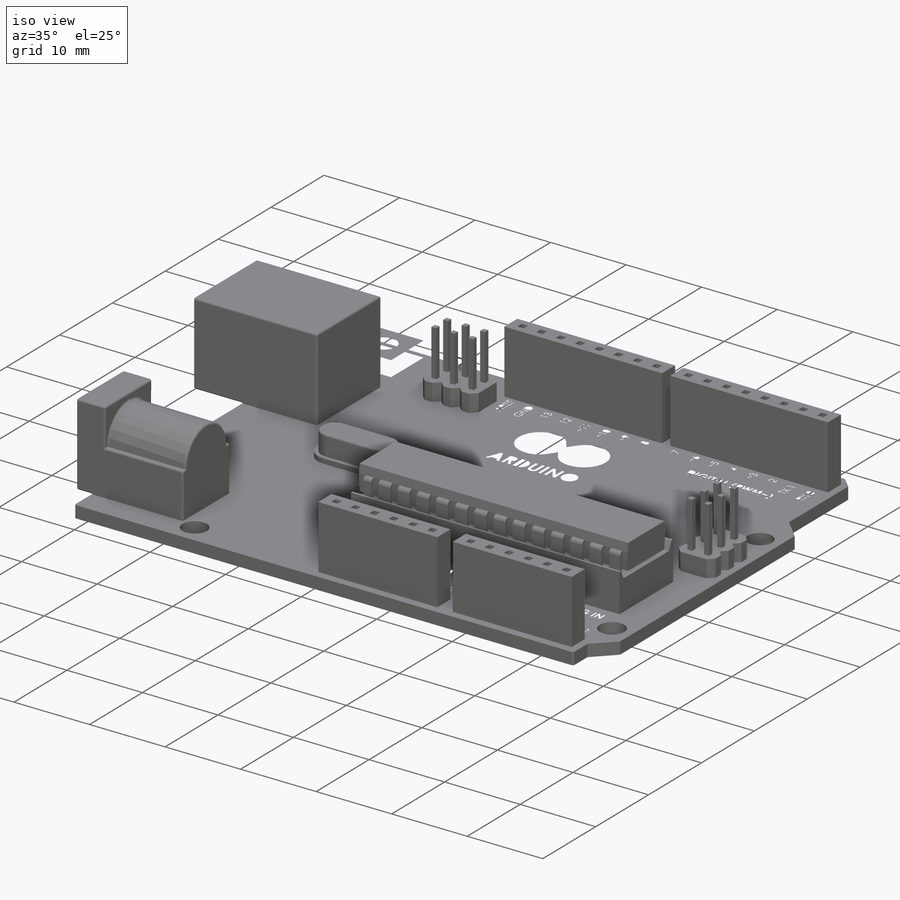
[diagram: iso view]
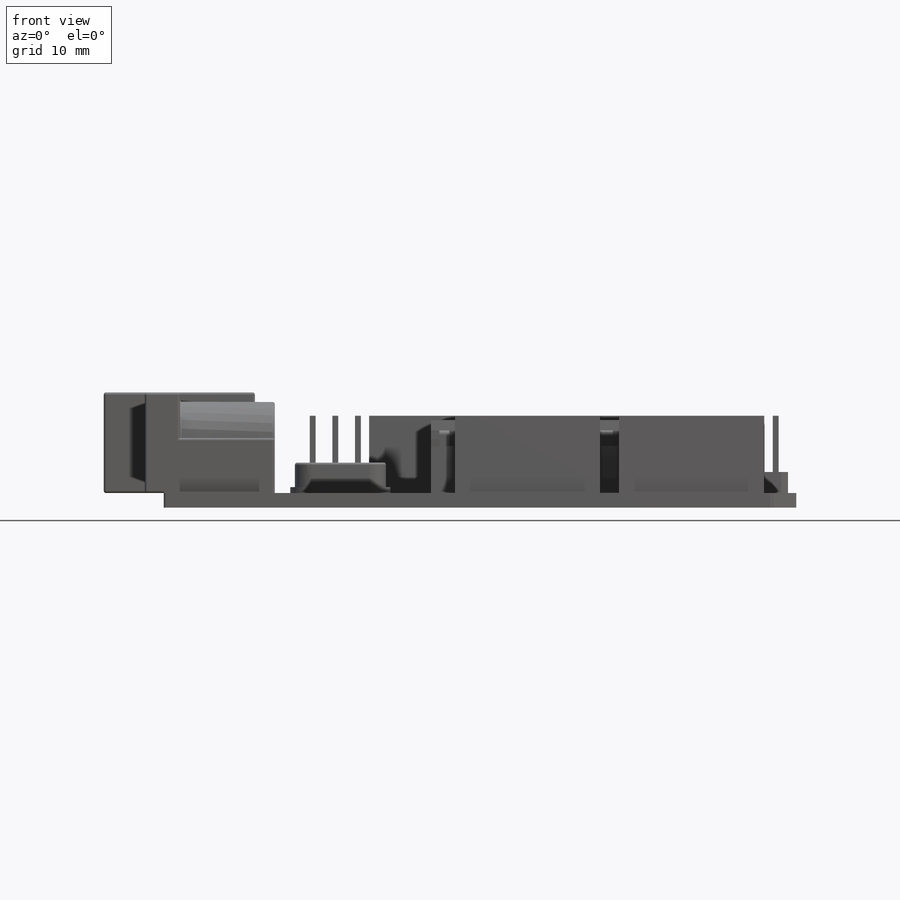
[diagram: front view]
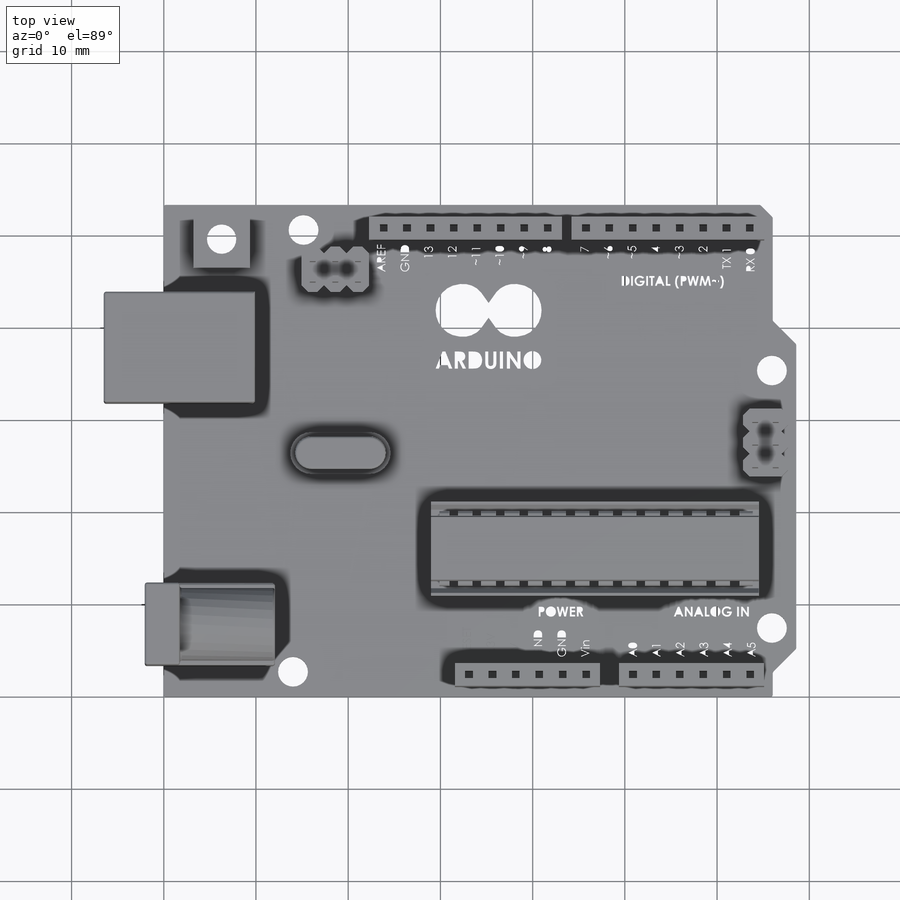
[diagram: top view]
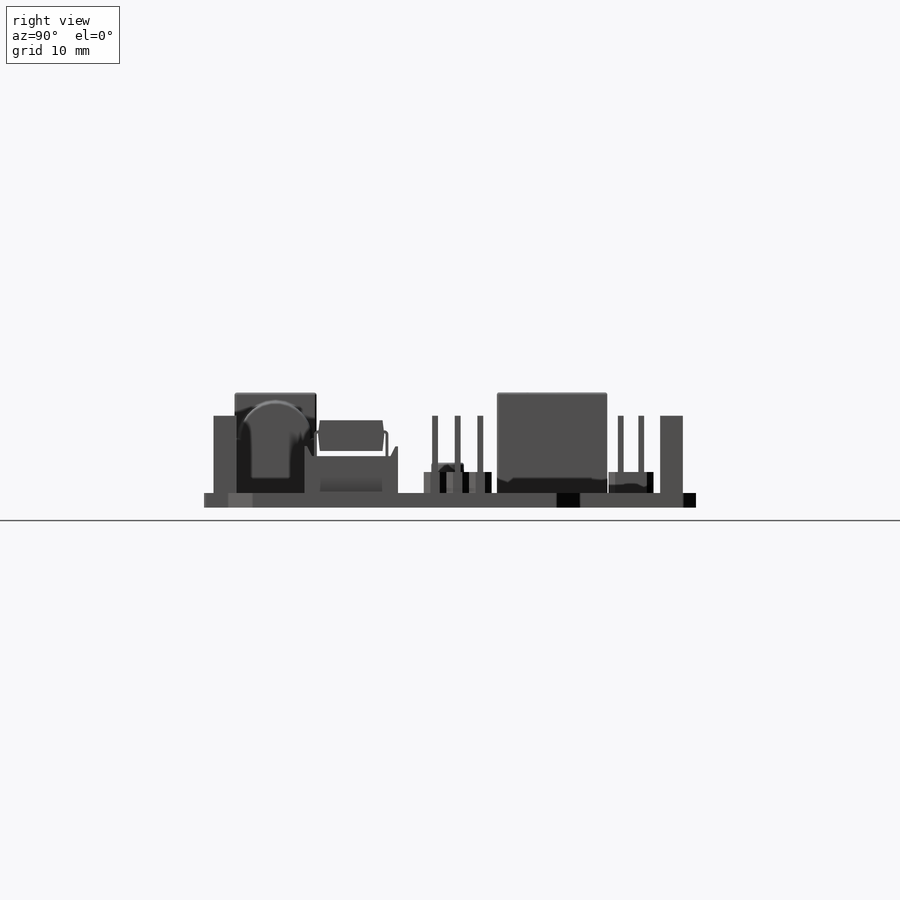
[diagram: right view]
SOLIDWORKS PART (.sldprt)
format: sldprt  version: not decoded by parser v0  size: 3,817,984 bytes
history: native  units: mm
features: sketch x19, cut_extrude x10, extrude x9, fillet x3, material x1, dome x1 (+19 scaffold rows collapsed; 6 parser-record rows omitted)
feature tree (68):
  scaffold x19  (default folders/planes/origin — collapsed)
  material  "Material <not specified>"
  sketch  "Sketch1"  dims[c1.D8=3.2385mm c1.D16=0.254mm c1.D1=66.04mm c1.D2=2.667mm c1.D3=5.207mm c1.D4=~6.561021mm c2.D4=45.0deg c2.D5=38.227mm c2.D6=53.34mm c2.D7=1.9431mm c2.D9=1.016mm c2.D10=5.842mm c2.D11=16.3322mm c2.D12=13.5382mm c2.D13=1.0922mm c2.D14=12.3952mm c2.D15=1.0922mm]
  extrude  "PCB"  Depth=1.5875mm
  parser-record x6  (decoder bookkeeping rows leaked as tree rows — omitted from the tree; the rows remain in map.json)
  sketch  "Sketch2"  dims[D1=16.383mm D2=6.5024mm D3=11.9761mm D4=21.59mm]
  extrude  "USB box"  Depth=10.922mm
  sketch  "Sketch3"  dims[c1.D1=1.4097mm c1.D2=1.651mm c1.D3=1.651mm c1.D4=1.4097mm c1.D5=~2.214315mm c2.D5=45.0deg c2.D6=2.54mm c2.D7=5.588mm c2.D8=3.175mm c2.D9=2.286mm]
  cut_extrude  "USB hole"  Depth=9.017mm
  fillet  "Fillet1"  Radius=0.254mm
  sketch  "Sketch4"  dims[D1=14.097mm D2=2.0574mm D3=8.89mm D4=12.192mm]
  extrude  "Extrude4"  Depth=10.8966mm
  sketch  "Sketch5"  dims[D1=7.874mm D2=0.9906mm]
  cut_extrude  "Extrude5"  Depth=10.3124mm
  sketch  "Sketch6"  dims[D1=6.35mm D2=1.397mm]
  cut_extrude  "Extrude6"  Depth=9.4615mm
  sketch  "Sketch7"  dims[D1=2.0828mm]
  extrude  "Extrude7"  Depth=5.6515mm
  dome  "Dome1"
  fillet  "Fillet2"  Radius=0.254mm
  sketch  "Sketch8"  dims[c1.D1=15.748mm c1.D2=15.748mm c1.D3=33.528mm c1.D4=34.4678mm c1.D5=2.4638mm c1.D6=3.4925mm c1.D7=20.8788mm c2.D2=42.8371mm c2.D8=43.7642mm c2.D9=3.8862mm c2.D10=0.8255mm c2.D11=1.1303mm c2.D12=0.8255mm c2.D13=2.54mm c2.D14=2.4511mm c2.D15=4.8895mm c2.D16=~2.763746mm c3.D16=135.0deg c3.D17=~2.252448mm c4.D17=135.0deg c4.D18=~1.015279mm c5.D18=135.0deg c5.D19=~0.717911mm c6.D19=45.0deg c7.D19=9.4869mm c7.D14=4.8895mm c7.D16=135.0deg c7.D18=5.7785mm c7.D20=~1.015279mm c7.D21=~1.015279mm c8.D21=135.0deg c8.D22=~0.717911mm c9.D22=135.0deg c9.D23=~1.015279mm c10.D23=135.0deg c10.D24=31.1785mm c10.D25=35.56mm c10.D26=39.624mm c10.D27=10.16mm c10.D28=21.0312mm]
  extrude  "Extrude8"  Depth=8.382mm
  sketch  "Sketch9"  dims[D1=0.635mm D2=1.5875mm D4=1.5875mm D3=0.0mm D5=0.0mm]
  cut_extrude  "Extrude9"  Depth=6.096mm
  sketch  "Sketch10"  dims[D1=7.8994mm D2=6.8072mm D3=7.1882mm D4=5.588mm D5=5.0546mm D6=3.3401mm D7=1.5494mm D8=6.8072mm D9=0.3175mm]
  cut_extrude  "Extrude10"  [1 undecoded]
  sketch  "Sketch11"  dims[D1=1.5875mm D2=1.0795mm D3=0.9144mm D4=0.9271mm]
  cut_extrude  "Extrude11"  [1 undecoded]
  sketch  "Sketch14"  dims[D2=2.2733mm D1=10.8712mm D3=24.5872mm D4=29.21mm]
  extrude  "Extrude14"  Depth=3.302mm
  sketch  "Sketch15"  dims[D3=3.5306mm D1=0.0mm D2=0.508mm]
  cut_extrude  "Extrude15"  Depth=2.667mm
  fillet  "Fillet3"  Radius=0.254mm
  sketch  "Sketch17"  dims[D1=1.016mm]
  cut_extrude  "Extrude16"  Depth=0.02667mm
  sketch  "Sketch18"  dims[D1=1.016mm]
  cut_extrude  "Extrude17"  Depth=0.02667mm
  sketch  "Sketch19"  dims[D1=~0.846667mm D2=2.54mm]
  cut_extrude  "Extrude18"  Depth=0.02667mm
  sketch  "Sketch20"  dims[D1=0.0mm D2=0.0mm D3=0.0mm D4=0.0mm D5=0.0mm D6=0.0mm D7=0.0mm D8=0.0mm D9=0.0mm D10=0.0mm D11=0.0mm D12=0.0mm D13=0.0mm D14=0.0mm D15=0.0mm D16=0.0mm D17=0.0mm D18=0.0mm D19=0.0mm D20=0.0mm D21=0.0mm D22=0.0mm D23=0.0mm D24=0.0mm D25=0.0mm D26=0.0mm D27=0.0mm D28=0.0mm D29=0.0mm D30=0.0mm D31=0.0mm D32=0.0mm D33=0.0mm D34=0.0mm D35=0.0mm D36=0.0mm D37=0.0mm D38=0.0mm D39=0.0mm D40=0.0mm D41=0.0mm]
  extrude  "Extrude19"  Depth=1.524mm
  sketch  "Sketch21"  dims[D1=6.1468mm D2=0.6858mm D3=3.2004mm]
  extrude  "Boss-Extrude1"  Depth=2.032mm
  sketch  "Sketch22"  dims[D1=3.175mm]
  extrude  "Boss-Extrude2"  Depth=0.889mm
decode coverage: 39 of 42 modeling features carry decoded parameters
note: ~ marks probable driven/reference dimensions
note: 2 parameter values undecoded
note: suppression state not decoded; provenance and decode notes live in map.json
